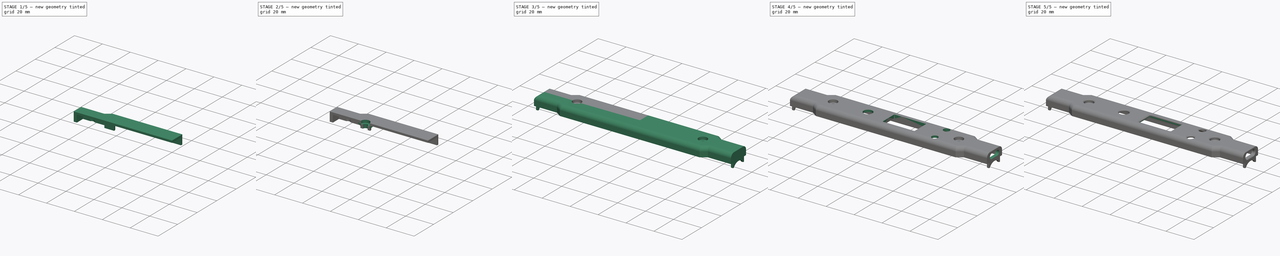
[diagram: build sequence overview — one tinted view per stage of 5, left to right]
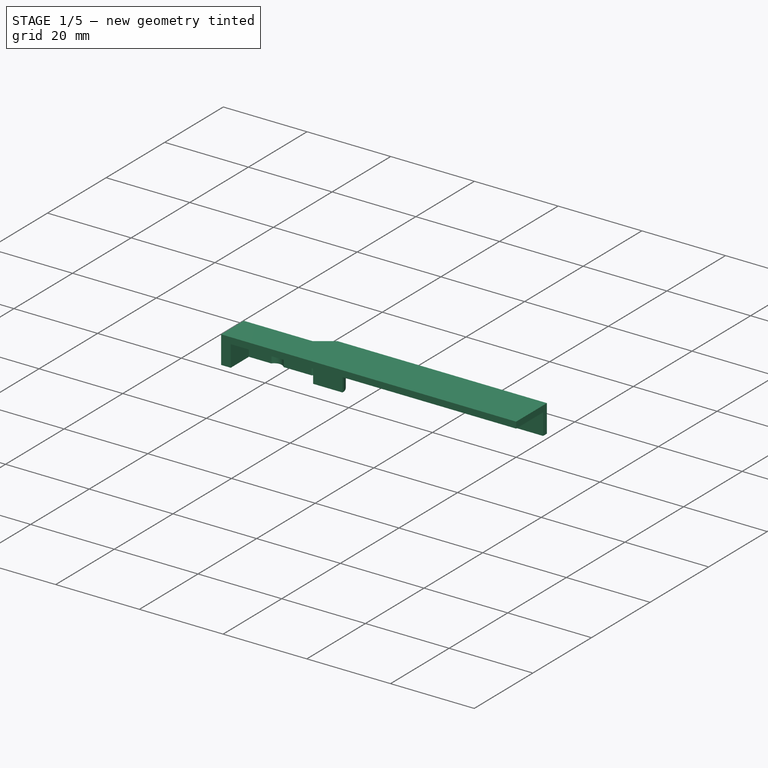
[diagram: stage 1 of 5 — iso view after this stage's code; geometry added in this stage tinted green]
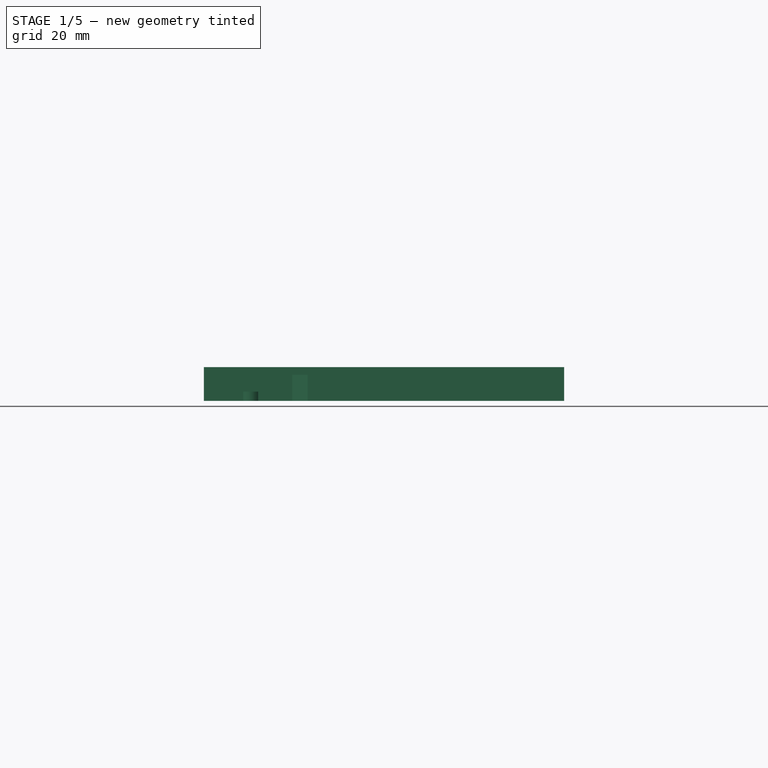
[diagram: stage 1 of 5 — front view after this stage's code; geometry added in this stage tinted green]
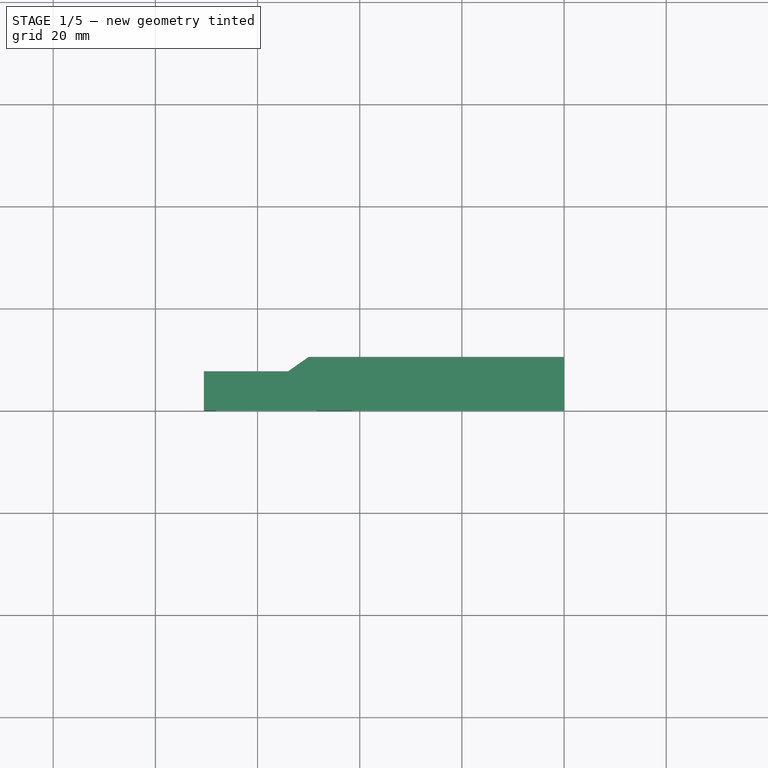
[diagram: stage 1 of 5 — top view after this stage's code; geometry added in this stage tinted green]
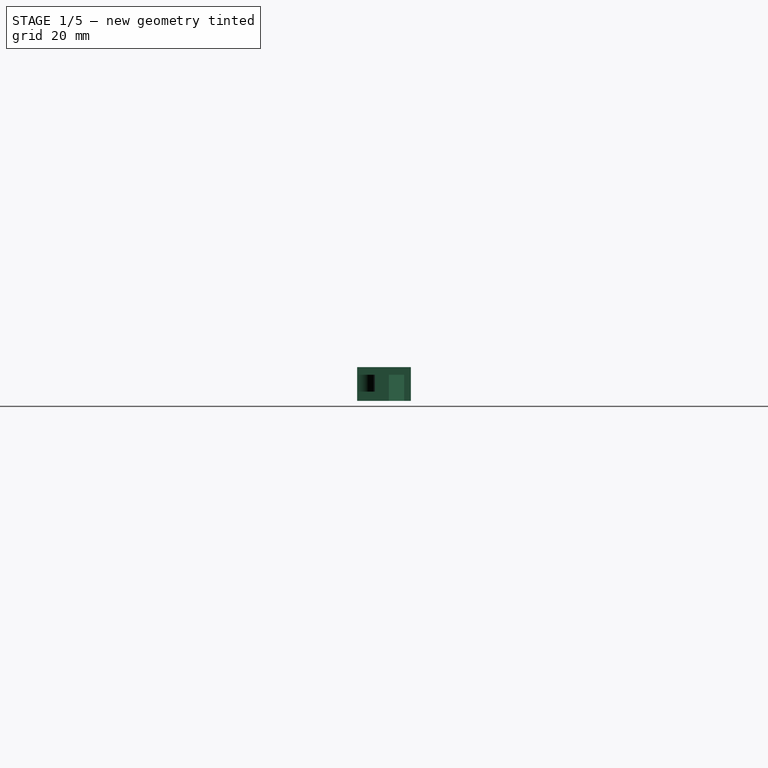
[diagram: stage 1 of 5 — right view after this stage's code; geometry added in this stage tinted green]
FCSTD DOCUMENT  (FreeCAD 0.19R24291 (Git))
Label: top-case
License: All rights reserved
LicenseURL: http://en.wikipedia.org/wiki/All_rights_reserved
objects: Sketcher::SketchObject×10, PartDesign::Pocket×7, PartDesign::Plane×4, PartDesign::Pad×3, PartDesign::Line×2, PartDesign::Chamfer×2, PartDesign::Mirrored×2, PartDesign::Fillet×2, PartDesign::MultiTransform×1, PartDesign::Body×1
note: 48 computed .brp shape members not serialized (recipe doc carries the construction recipe); baked Part::Feature solids carry a one-line shape summary decoded from their .brp

FEATURE [PartDesign::Plane] DatumPlane  label="BoardTop"
  AttachmentOffset = pos=(0,0,1.6) rot=(0,0,1;0rad)
  Length = 60
  MapMode = 5
  Placement = pos=(0,0,1.6) rot=(0,0,1;0rad)
  ResizeMode = 0
  Support = -> [XY_Plane]
  Width = 60
FEATURE [PartDesign::Plane] DatumPlane001  label="CaseTop"
  AttachmentOffset = pos=(0,0,5) rot=(0,0,1;0rad)
  Length = 60
  MapMode = 5
  Placement = pos=(0,0,6.6) rot=(0,0,1;0rad)
  ResizeMode = 0
  Support = -> [DatumPlane]
  Width = 60
FEATURE [Sketcher::SketchObject] Sketch
  FullyConstrained = true
  MapMode = 5
  Placement = pos=(0,0,6.6) rot=(0,0,1;0rad)
  Support = -> [DatumPlane001]
  sketch-geometry (7):
    g0: LineSegment StartX=0 StartY=0 StartZ=0 EndX=-70.5 EndY=0 EndZ=0
    g1: LineSegment StartX=-70.5 StartY=0 StartZ=0 EndX=-70.5 EndY=7.7 EndZ=0
    g2: LineSegment StartX=-70.5 StartY=7.7 StartZ=0 EndX=-54 EndY=7.7 EndZ=0
    g3: LineSegment StartX=-54 StartY=7.7 StartZ=0 EndX=-50 EndY=10.5 EndZ=0
    g4: LineSegment StartX=-50 StartY=10.5 StartZ=0 EndX=0 EndY=10.5 EndZ=0
    g5: LineSegment StartX=0 StartY=10.5 StartZ=0 EndX=0 EndY=0 EndZ=0
    g6: GeomPoint X=-69 Y=7.7 Z=0
  constraints (19):
    c: Coincident(g-1,g0)
    c: Coincident(g0,g1)
    c: Vertical(g1)
    c: Coincident(g1,g2)
    c: Horizontal(g2)
    c: Coincident(g2,g3)
    c: Coincident(g3,g4)
    c: Horizontal(g4)
    c: Coincident(g4,g5)
    c: Coincident(g5,g0)
    c: Horizontal(g0)
    c: Vertical(g5)
    c: DistanceX(g4,g4) = 50
    c: PointOnObject(g6,g2)
    c: DistanceX(g6,g4) = 69
    c: DistanceX(g1,g6) = 1.5
    c: DistanceX(g2,g3) = 4
    c: DistanceY(g1,g1) = 7.7
    c: DistanceY(g5,g5) = 10.5
FEATURE [PartDesign::Pad] Pad  label="CaseOutlinePad"
  Direction = (1,1,1)
  Length = 10
  Length2 = 100
  Placement = pos=(0,0,6.6) rot=(0,0,1;0rad)
  Profile = -> Sketch
  Type = 3
  UpToFace = -> XY_Plane
FEATURE [PartDesign::Line] DatumLine  label="MountingHoleAxis"
  AttacherType = Attacher::AttachEngineLine
  AttachmentOffset = pos=(-45,0,0) rot=(0,0,1;0rad)
  Length = 20
  MapMode = 18
  Placement = pos=(-45,0,6.6) rot=(0,0,1;0rad)
  ResizeMode = 0
  Support = -> [Pad]
FEATURE [Sketcher::SketchObject] Sketch002
  ExternalGeometry = -> [DatumLine]
  FullyConstrained = true
  MapMode = 5
  Support = -> [XY_Plane]
  sketch-geometry (8):
    g0: LineSegment StartX=0 StartY=0 StartZ=0 EndX=0 EndY=9.2 EndZ=0
    g1: LineSegment StartX=0 StartY=9.2 StartZ=0 EndX=-50.2 EndY=9.2 EndZ=0
    g2: LineSegment StartX=-50.2 StartY=9.2 StartZ=0 EndX=-53.2 EndY=6.2 EndZ=0
    g3: LineSegment StartX=-53.2 StartY=6.2 StartZ=0 EndX=-68.2 EndY=6.2 EndZ=0
    g4: LineSegment StartX=-68.2 StartY=6.2 StartZ=0 EndX=-68.2 EndY=0 EndZ=0
    g5: LineSegment StartX=-68.2 StartY=4e-16 StartZ=0 EndX=-48.5 EndY=4e-16 EndZ=0
    g6: LineSegment StartX=-41.5 StartY=0 StartZ=0 EndX=0 EndY=0 EndZ=0
    g7: ArcOfCircle CenterX=-45 CenterY=0 CenterZ=0 NormalX=0 NormalY=0 NormalZ=1 AngleXU=0 Radius=3.5 StartAngle=0 EndAngle=3.14159
  constraints (24):
    c: Coincident(g-1,g0)
    c: Coincident(g0,g1)
    c: Horizontal(g1)
    c: Coincident(g1,g2)
    c: Coincident(g2,g3)
    c: Horizontal(g3)
    c: PointOnObject(g4,g-1)
    c: Coincident(g4,g5)
    c: Coincident(g6,g0)
    c: Coincident(g7,g5)
    c: Coincident(g7,g6)
    c: Coincident(g7,g-3)
    c: Horizontal(g5)
    c: Horizontal(g6)
    c: Vertical(g4)
    c: Vertical(g0)
    c: Angle(g2,g1) = 2.35619
    c: DistanceX(g1,g1) = 50.2
    c: DistanceX(g2,g2) = 3
    c: DistanceX(g4,g2) = 15
    c: DistanceY(g4,g4) = 6.2
    c: Radius(g7) = 3.5
    c: Coincident(g3,g4)
    c: DistanceY(g0,g0) = 9.2
FEATURE [PartDesign::Pocket] Pocket  label="InnerPocket"
  BaseFeature = -> Pad
  Length = 0
  Length2 = 100
  Offset = 1.5
  Placement = pos=(0,0,6.6) rot=(0,0,1;0rad)
  Profile = -> Sketch002
  Type = 3
  UpToFace = -> DatumPlane001 [Plane]
FEATURE [Sketcher::SketchObject] Sketch003
  ExternalGeometry = -> [DatumLine]
  FullyConstrained = true
  MapMode = 5
  Support = -> [XY_Plane]
  sketch-geometry (3):
    g0: Circle CenterX=-45 CenterY=0 CenterZ=0 NormalX=0 NormalY=0 NormalZ=1 AngleXU=0 Radius=4
    g1: Circle CenterX=-61.36 CenterY=5.08 CenterZ=0 NormalX=0 NormalY=0 NormalZ=1 AngleXU=0 Radius=1.85
    g2: GeomPoint X=-53 Y=6 Z=0
  constraints (7):
    c: Coincident(g0,g-3)
    c: Radius(g0) = 4
    c: DistanceX(g2,g-1) = 53
    c: DistanceY(g-1,g2) = 6
    c: DistanceX(g1,g2) = 8.36
    c: DistanceY(g1,g2) = 0.92
    c: Radius(g1) = 1.85
FEATURE [PartDesign::Pocket] Pocket001  label="BoardMountingBossPocket"
  BaseFeature = -> Pocket
  Length = 0
  Length2 = 100
  Offset = -0.2
  Placement = pos=(0,0,6.6) rot=(0,0,1;0rad)
  Profile = -> Sketch003
  Type = 3
  UpToFace = -> DatumPlane [Plane]
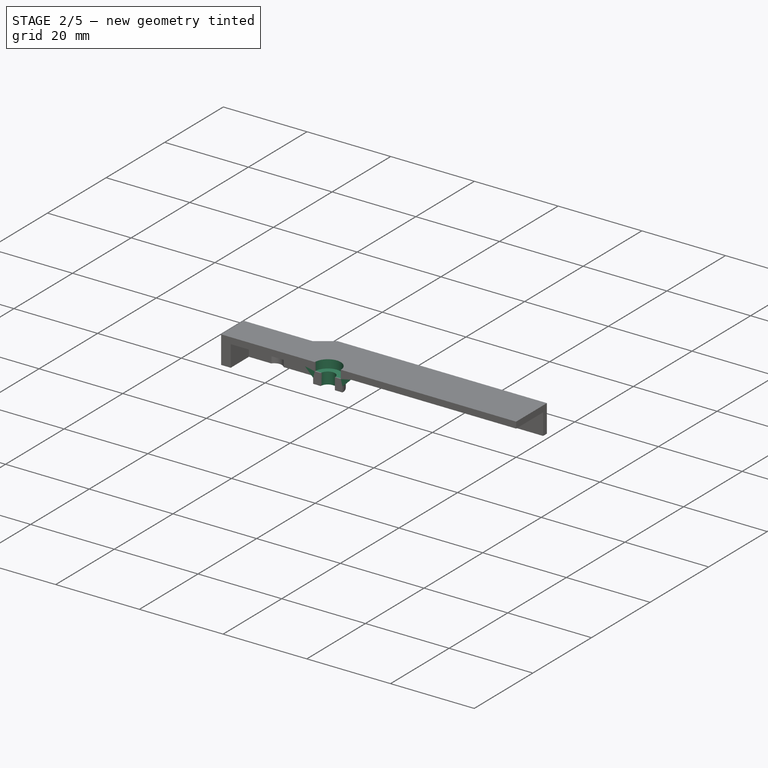
[diagram: stage 2 of 5 — iso view after this stage's code; geometry added in this stage tinted green]
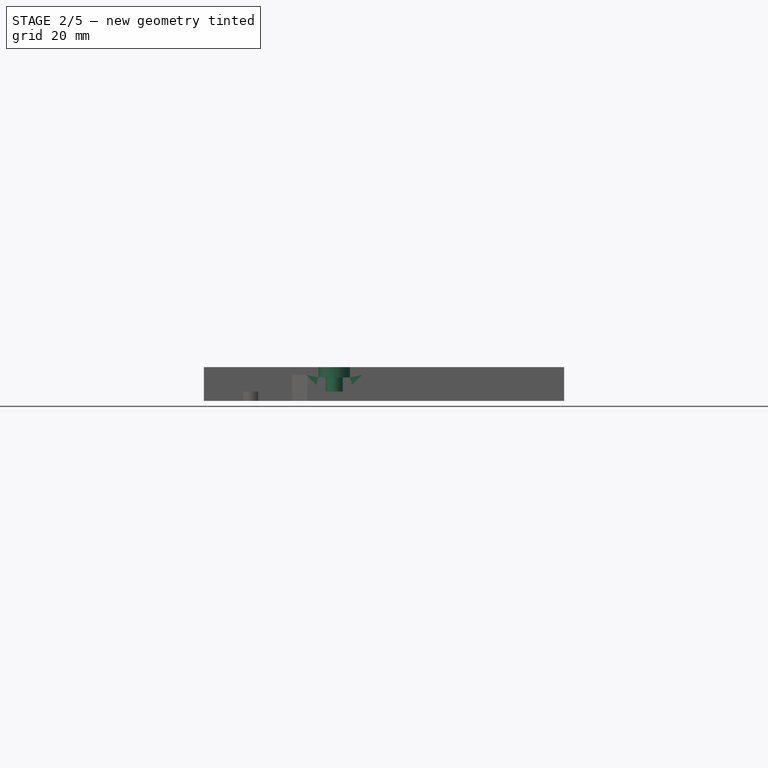
[diagram: stage 2 of 5 — front view after this stage's code; geometry added in this stage tinted green]
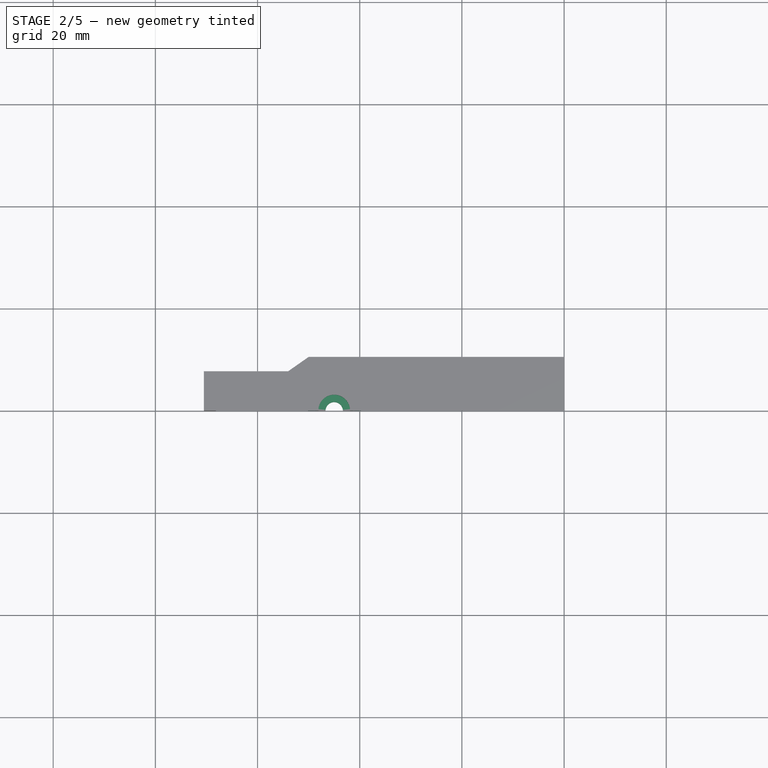
[diagram: stage 2 of 5 — top view after this stage's code; geometry added in this stage tinted green]
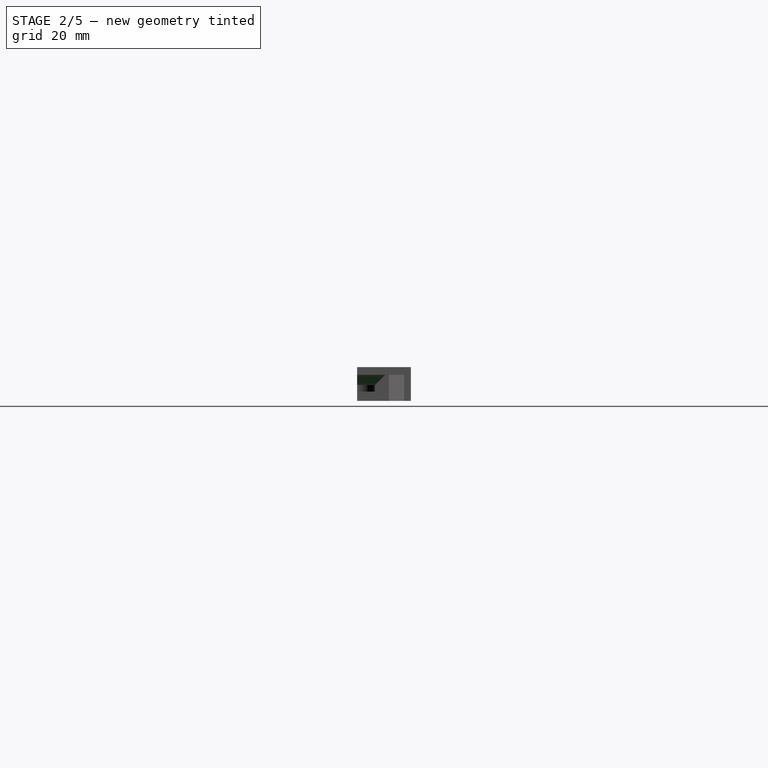
[diagram: stage 2 of 5 — right view after this stage's code; geometry added in this stage tinted green]
FEATURE [Sketcher::SketchObject] Sketch004
  ExternalGeometry = -> [DatumLine]
  FullyConstrained = true
  MapMode = 5
  Placement = pos=(0,0,6.6) rot=(0,0,1;0rad)
  Support = -> [DatumPlane001]
  sketch-geometry (1):
    g0: Circle CenterX=-45 CenterY=0 CenterZ=0 NormalX=0 NormalY=0 NormalZ=1 AngleXU=0 Radius=3.1
  constraints (2):
    c: Coincident(g0,g-3)
    c: Radius(g0) = 3.1
FEATURE [PartDesign::Pocket] Pocket002  label="ScrewHeadPocket"
  BaseFeature = -> Pocket001
  Length = 2
  Length2 = 100
  Placement = pos=(0,0,6.6) rot=(0,0,1;0rad)
  Profile = -> Sketch004
  Type = 0
FEATURE [Sketcher::SketchObject] Sketch005
  ExternalGeometry = -> [DatumLine]
  FullyConstrained = true
  MapMode = 5
  Support = -> [XY_Plane]
  sketch-geometry (1):
    g0: Circle CenterX=-45 CenterY=0 CenterZ=0 NormalX=0 NormalY=0 NormalZ=1 AngleXU=0 Radius=1.7
  constraints (2):
    c: Coincident(g0,g-3)
    c: Radius(g0) = 1.7
FEATURE [PartDesign::Pocket] Pocket003  label="ScrewClearance"
  BaseFeature = -> Pocket002
  Length = 5
  Length2 = 100
  Placement = pos=(0,0,6.6) rot=(0,0,1;0rad)
  Profile = -> Sketch005
  Reversed = true
  Type = 1
FEATURE [PartDesign::Chamfer] Chamfer  label="ScrewChamfer"
  Angle = 45
  Base = -> Pocket003 [Edge25]
  BaseFeature = -> Pocket003
  ChamferType = 0
  FlipDirection = false
  Placement = pos=(0,0,6.6) rot=(0,0,1;0rad)
  Size = 2
  Size2 = 1
  SupportTransform = false
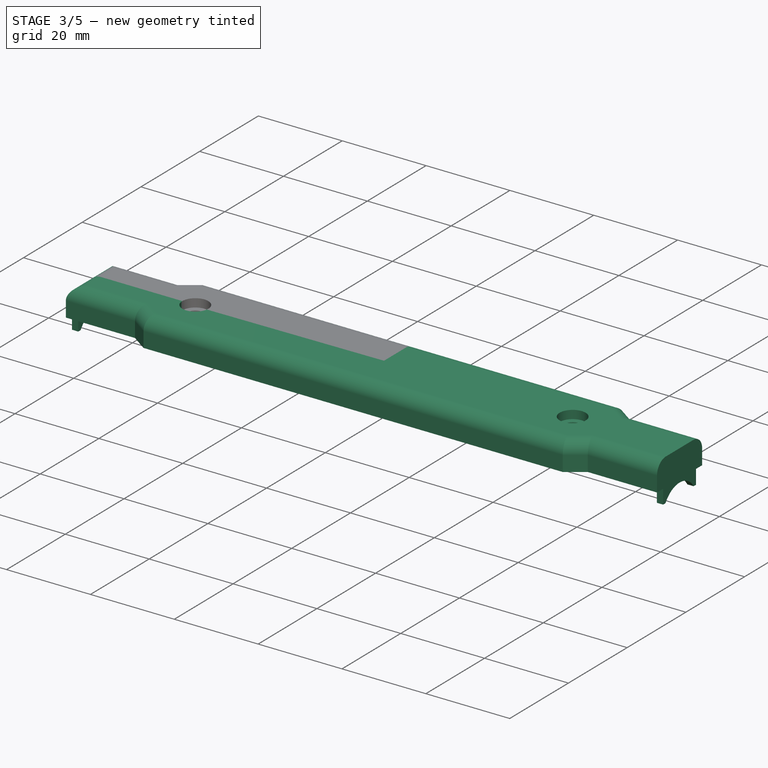
[diagram: stage 3 of 5 — iso view after this stage's code; geometry added in this stage tinted green]
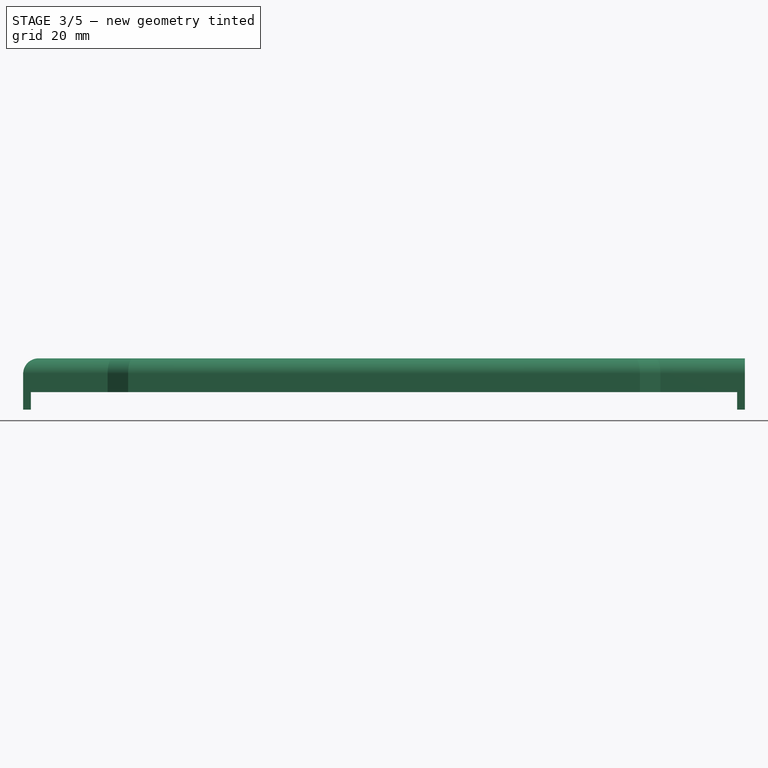
[diagram: stage 3 of 5 — front view after this stage's code; geometry added in this stage tinted green]
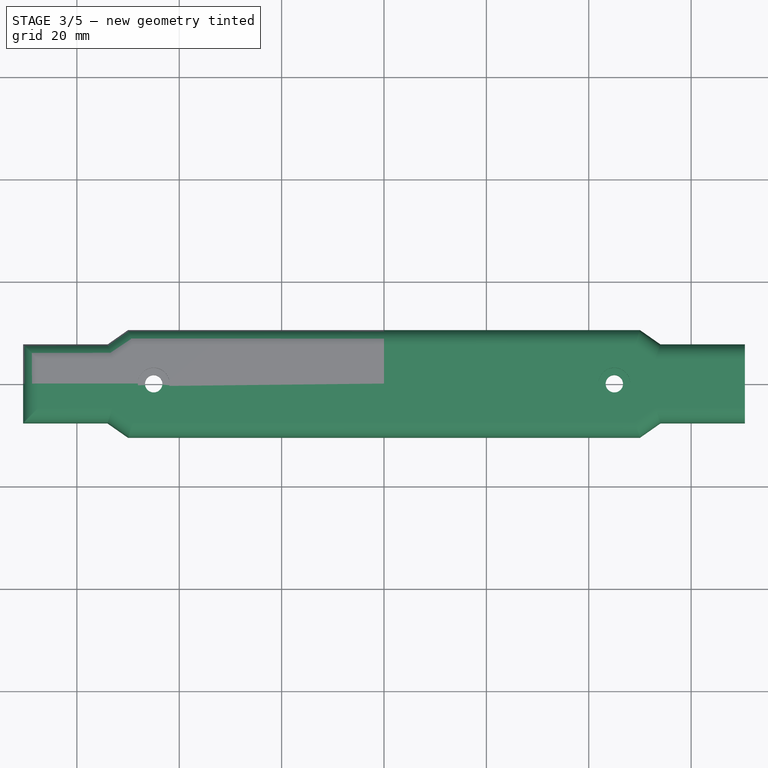
[diagram: stage 3 of 5 — top view after this stage's code; geometry added in this stage tinted green]
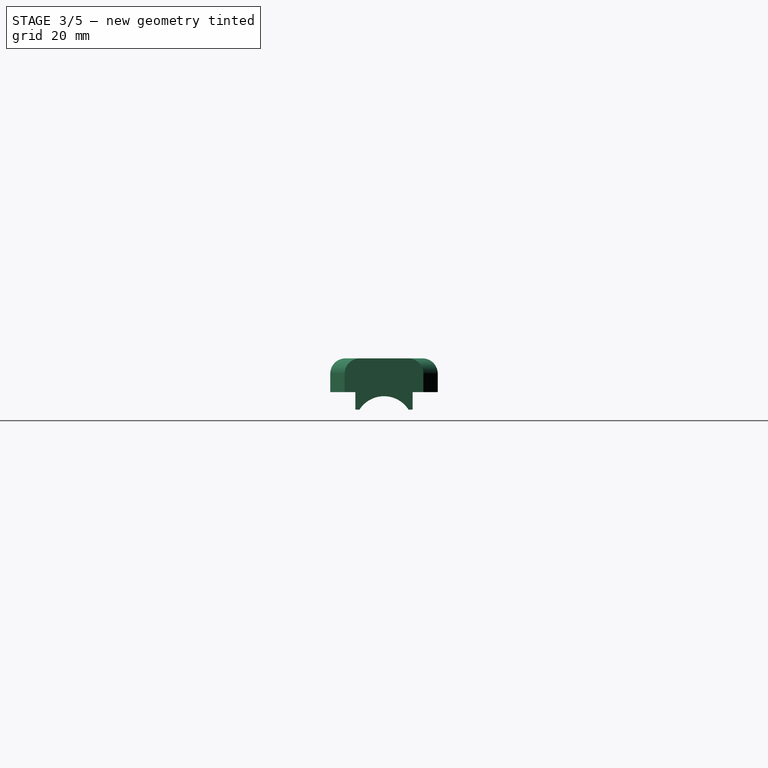
[diagram: stage 3 of 5 — right view after this stage's code; geometry added in this stage tinted green]
FEATURE [PartDesign::Plane] DatumPlane003  label="CaseFront"
  AttachmentOffset = pos=(0,0,-70.5) rot=(0,0,1;0rad)
  Length = 60
  MapMode = 5
  Placement = pos=(-70.5,1.57e-14,-1.57e-14) rot=(0.57735,0.57735,0.57735;2.0944rad)
  ResizeMode = 0
  Support = -> [YZ_Plane]
  Width = 60
FEATURE [Sketcher::SketchObject] Sketch006
  FullyConstrained = true
  MapMode = 5
  Placement = pos=(-70.5,1.57e-14,-1.57e-14) rot=(0.57735,0.57735,0.57735;2.0944rad)
  Support = -> [DatumPlane003]
  sketch-geometry (5):
    g0: ArcOfCircle CenterX=0 CenterY=-6.5 CenterZ=0 NormalX=0 NormalY=0 NormalZ=1 AngleXU=0 Radius=5.7 StartAngle=0.569621 EndAngle=1.5708
    g1: LineSegment StartX=5.6 StartY=0 StartZ=0 EndX=0 EndY=0 EndZ=0
    g2: LineSegment StartX=0 StartY=0 StartZ=0 EndX=3e-16 EndY=-0.8 EndZ=0
    g3: LineSegment StartX=4.8 StartY=-3.42591 StartZ=0 EndX=5.6 EndY=-3.42591 EndZ=0
    g4: LineSegment StartX=5.6 StartY=-3.42591 StartZ=0 EndX=5.6 EndY=0 EndZ=0
  constraints (15):
    c: PointOnObject(g0,g-2)
    c: PointOnObject(g0,g-2)
    c: Coincident(g1,g-1)
    c: Coincident(g2,g1)
    c: Coincident(g0,g2)
    c: Horizontal(g1)
    c: Radius(g0) = 5.7
    c: DistanceY(g0,g1) = 6.5
    c: DistanceX(g1,g1) = 5.6
    c: Coincident(g0,g3)
    c: Coincident(g3,g4)
    c: Coincident(g4,g1)
    c: Horizontal(g3)
    c: Vertical(g4)
    c: DistanceX(g3,g3) = 0.8
FEATURE [PartDesign::Pad] Pad001  label="ProbeHole"
  BaseFeature = -> Chamfer
  Direction = (1,1,1)
  Length = 1.5
  Length2 = 100
  Placement = pos=(0,0,6.6) rot=(0,0,1;0rad)
  Profile = -> Sketch006
  Type = 0
FEATURE [PartDesign::Mirrored] Mirrored
  MirrorPlane = -> Sketch [V_Axis]
  Placement = pos=(0,0,6.6) rot=(0,0,1;0rad)
FEATURE [PartDesign::Mirrored] Mirrored001
  MirrorPlane = -> XZ_Plane
  Placement = pos=(0,0,6.6) rot=(0,0,1;0rad)
FEATURE [PartDesign::MultiTransform] MultiTransform
  BaseFeature = -> Pad001
  Originals = -> [Pad,Pocket,Pocket001,Pocket002,Pocket003,Chamfer,Pad001]
  Placement = pos=(0,0,6.6) rot=(0,0,1;0rad)
  Transformations = -> [Mirrored,Mirrored001]
FEATURE [PartDesign::Plane] DatumPlane004  label="CaseBack"
  AttachmentOffset = pos=(0,0,70.5) rot=(0,0,1;0rad)
  Length = 60
  MapMode = 5
  Placement = pos=(70.5,-1.57e-14,1.57e-14) rot=(0.57735,0.57735,0.57735;2.0944rad)
  ResizeMode = 0
  Support = -> [YZ_Plane]
  Width = 60
FEATURE [Sketcher::SketchObject] Sketch007
  ExternalGeometry = -> [DatumPlane]
  FullyConstrained = true
  MapMode = 5
  Placement = pos=(70.5,-1.57e-14,1.57e-14) rot=(0.57735,0.57735,0.57735;2.0944rad)
  Support = -> [DatumPlane004]
  sketch-geometry (8):
    g0: LineSegment StartX=-2.9 StartY=5.08 StartZ=0 EndX=2.9 EndY=5.08 EndZ=0
    g1: LineSegment StartX=-2.9 StartY=1.48 StartZ=0 EndX=2.9 EndY=1.48 EndZ=0
    g2: LineSegment StartX=-2.9 StartY=3.28 StartZ=0 EndX=2.9 EndY=3.28 EndZ=0
    g3: ArcOfCircle CenterX=-2.9 CenterY=3.28 CenterZ=0 NormalX=0 NormalY=0 NormalZ=1 AngleXU=0 Radius=1.8 StartAngle=1.5708 EndAngle=4.71239
    g4: ArcOfCircle CenterX=2.9 CenterY=3.28 CenterZ=0 NormalX=0 NormalY=0 NormalZ=1 AngleXU=0 Radius=1.8 StartAngle=4.71239 EndAngle=7.85398
    g5: GeomPoint X=0 Y=1.6 Z=0
    g6: GeomPoint X=-4.7 Y=3.28 Z=0
    g7: GeomPoint X=4.7 Y=3.28 Z=0
  constraints (18):
    c: Horizontal(g0)
    c: Horizontal(g1)
    c: Coincident(g3,g1)
    c: Tangent(g4,g1) = -1.5708
    c: Tangent(g4,g0) = 1.5708
    c: Tangent(g3,g0) = 1.5708
    c: Coincident(g2,g3)
    c: Coincident(g2,g4)
    c: Symmetric(g4,g3,g-2)
    c: PointOnObject(g5,g-2)
    c: PointOnObject(g5,g-3)
    c: DistanceY(g5,g4) = 1.68
    c: PointOnObject(g6,g3)
    c: PointOnObject(g7,g4)
    c: PointOnObject(g7,g2)
    c: PointOnObject(g6,g2)
    c: DistanceX(g6,g7) = 9.4
    c: DistanceY(g1,g0) = 3.6
FEATURE [PartDesign::Line] DatumLine001  label="LcdActiveCenterAxis"
  AttacherType = Attacher::AttachEngineLine
  AttachmentOffset = pos=(6,0,0) rot=(0,0,1;0rad)
  Length = 20
  MapMode = 16
  Placement = pos=(6,-2e-15,2e-15) rot=(0,0,1;0rad)
  ResizeMode = 0
  Support = -> [Z_Axis]
FEATURE [Sketcher::SketchObject] Sketch008
  ExternalGeometry = -> [DatumLine001]
  FullyConstrained = true
  MapMode = 5
  Support = -> [XY_Plane]
  sketch-geometry (19):
    g0: Circle CenterX=-20 CenterY=0 CenterZ=0 NormalX=0 NormalY=0 NormalZ=1 AngleXU=0 Radius=3.2
    g1: Circle CenterX=32 CenterY=6 CenterZ=0 NormalX=0 NormalY=0 NormalZ=1 AngleXU=0 Radius=2.2
    g2: Circle CenterX=32 CenterY=-6 CenterZ=0 NormalX=0 NormalY=0 NormalZ=1 AngleXU=0 Radius=2.2
    g3: LineSegment StartX=32 StartY=-6 StartZ=0 EndX=32 EndY=6 EndZ=0
    g4: GeomPoint X=6 Y=-2e-15 Z=0
    g5: GeomPoint X=32 Y=0 Z=0
    g6: GeomPoint X=6 Y=0 Z=0
    g7: GeomPoint X=-5.45 Y=6 Z=0
    g8: GeomPoint X=17.45 Y=6 Z=0
    g9: GeomPoint X=-5.45 Y=-6 Z=0
    g10: GeomPoint X=17.45 Y=-6 Z=0
    g11: LineSegment StartX=-4.95 StartY=6 StartZ=0 EndX=16.95 EndY=6 EndZ=0
    g12: LineSegment StartX=17.45 StartY=5.5 StartZ=0 EndX=17.45 EndY=-5.5 EndZ=0
    g13: LineSegment StartX=-5.45 StartY=5.5 StartZ=0 EndX=-5.45 EndY=-5.5 EndZ=0
    g14: LineSegment StartX=-4.95 StartY=-6 StartZ=0 EndX=16.95 EndY=-6 EndZ=0
    g15: ArcOfCircle CenterX=-4.95 CenterY=-5.5 CenterZ=0 NormalX=0 NormalY=0 NormalZ=1 AngleXU=0 Radius=0.5 StartAngle=3.14159 EndAngle=4.71239
    g16: ArcOfCircle CenterX=16.95 CenterY=-5.5 CenterZ=0 NormalX=0 NormalY=0 NormalZ=1 AngleXU=0 Radius=0.5 StartAngle=4.71239 EndAngle=6.28319
    g17: ArcOfCircle CenterX=16.95 CenterY=5.5 CenterZ=0 NormalX=0 NormalY=0 NormalZ=1 AngleXU=0 Radius=0.5 StartAngle=0 EndAngle=1.5708
    g18: ArcOfCircle CenterX=-4.95 CenterY=5.5 CenterZ=0 NormalX=0 NormalY=0 NormalZ=1 AngleXU=0 Radius=0.5 StartAngle=1.5708 EndAngle=3.14159
  constraints (42):
    c: PointOnObject(g0,g-1)
    c: Coincident(g3,g2)
    c: Coincident(g3,g1)
    c: Equal(g1,g2)
    c: Radius(g2) = 2.2
    c: DistanceY(g3,g3) = 12
    c: Symmetric(g2,g1,g-1)
    c: DistanceX(g0,g-1) = 20
    c: DistanceX(g-1,g1) = 32
    c: PointOnObject(g5,g3)
    c: PointOnObject(g5,g-1)
    c: Radius(g0) = 3.2
    c: DistanceX(g-3,g6) = 9e-16
    c: Coincident(g4,g-3)
    c: Symmetric(g0,g5,g6)
    c: Symmetric(g8,g9,g4)
    c: Horizontal(g11)
    c: Vertical(g13)
    c: Horizontal(g14)
    c: PointOnObject(g10,g14)
    c: PointOnObject(g10,g12)
    c: PointOnObject(g8,g12)
    c: PointOnObject(g8,g11)
    c: PointOnObject(g7,g11)
    c: PointOnObject(g7,g13)
    c: PointOnObject(g9,g13)
    c: DistanceY(g9,g7) = 12
    c: DistanceX(g9,g10) = 22.9
    c: Vertical(g12)
    c: PointOnObject(g9,g14)
    c: Equal(g18,g17)
    c: Equal(g17,g16)
    c: Equal(g16,g15)
    c: Tangent(g15,g14) = -1.5708
    c: Tangent(g15,g13) = -1.5708
    c: Tangent(g13,g18) = -1.5708
    c: Tangent(g18,g11) = 1.5708
    c: Tangent(g17,g11) = 1.5708
    c: Tangent(g17,g12) = 1.5708
    c: Tangent(g16,g12) = 1.5708
    c: Tangent(g16,g14) = -1.5708
    c: Radius(g18) = 0.5
FEATURE [Sketcher::SketchObject] Sketch009
  AttachmentOffset = pos=(0,0,-2.5) rot=(0,0,1;0rad)
  ExternalGeometry = -> [DatumLine001]
  FullyConstrained = true
  MapMode = 5
  Placement = pos=(0,0,4.1) rot=(0,0,1;0rad)
  Support = -> [DatumPlane001]
  sketch-geometry (14):
    g0: LineSegment StartX=-4.85 StartY=5.4 StartZ=0 EndX=16.85 EndY=5.4 EndZ=0
    g1: LineSegment StartX=16.85 StartY=5.4 StartZ=0 EndX=16.85 EndY=-5.4 EndZ=0
    g2: LineSegment StartX=16.85 StartY=-5.4 StartZ=0 EndX=-4.85 EndY=-5.4 EndZ=0
    g3: LineSegment StartX=-4.85 StartY=-5.4 StartZ=0 EndX=-4.85 EndY=5.4 EndZ=0
    g4: LineSegment StartX=-6.55 StartY=6.75 StartZ=0 EndX=21.4 EndY=6.75 EndZ=0
    g5: LineSegment StartX=21.4 StartY=6.75 StartZ=0 EndX=21.4 EndY=-6.75 EndZ=0
    g6: LineSegment StartX=21.4 StartY=-6.75 StartZ=0 EndX=-6.55 EndY=-6.75 EndZ=0
    g7: LineSegment StartX=-6.55 StartY=-6.75 StartZ=0 EndX=-6.55 EndY=6.75 EndZ=0
    g8: LineSegment StartX=-8.05 StartY=9.75 StartZ=0 EndX=22.9 EndY=9.75 EndZ=0
    g9: LineSegment StartX=22.9 StartY=9.75 StartZ=0 EndX=22.9 EndY=-9.75 EndZ=0
    g10: LineSegment StartX=22.9 StartY=-9.75 StartZ=0 EndX=-8.05 EndY=-9.75 EndZ=0
    g11: LineSegment StartX=-8.05 StartY=-9.75 StartZ=0 EndX=-8.05 EndY=9.75 EndZ=0
    g12: GeomPoint X=7.425 Y=6.75 Z=0
    g13: LineSegment StartX=7.425 StartY=6.75 StartZ=0 EndX=7.425 EndY=5.4 EndZ=0
  constraints (36):
    c: Coincident(g0,g1)
    c: Coincident(g1,g2)
    c: Coincident(g2,g3)
    c: Coincident(g3,g0)
    c: Horizontal(g0)
    c: Horizontal(g2)
    c: Vertical(g1)
    c: Vertical(g3)
    c: Symmetric(g2,g0,g-3)
    c: DistanceX(g0,g0) = 21.7
    c: DistanceY(g1,g1) = 10.8
    c: Coincident(g4,g5)
    c: Coincident(g5,g6)
    c: Coincident(g6,g7)
    c: Coincident(g7,g4)
    c: Horizontal(g4)
    c: Horizontal(g6)
    c: Vertical(g5)
    c: Symmetric(g4,g6,g-1)
    c: DistanceY(g7,g7) = 13.5
    c: DistanceX(g4,g4) = 27.95
    c: DistanceX(g4,g0) = 1.7
    c: Coincident(g8,g9)
    c: Coincident(g9,g10)
    c: Coincident(g10,g11)
    c: Coincident(g11,g8)
    c: Horizontal(g10)
    c: Vertical(g9)
    c: Symmetric(g8,g10,g-1)
    c: Symmetric(g4,g4,g12)
    c: Coincident(g13,g12)
    c: PointOnObject(g13,g0)
    c: Vertical(g13)
    c: Symmetric(g8,g8,g13)
    c: DistanceX(g8,g4) = 1.5
    c: DistanceY(g4,g8) = 3
FEATURE [Sketcher::SketchObject] Sketch010  label="ScreenOutline"
  AttachmentOffset = pos=(0,0,-2.5) rot=(0,0,1;0rad)
  ExternalGeometry = -> [DatumLine001]
  FullyConstrained = true
  MapMode = 5
  Placement = pos=(0,0,4.1) rot=(0,0,1;0rad)
  Support = -> [DatumPlane001]
  sketch-geometry (30):
    g0: LineSegment StartX=-4.85 StartY=5.4 StartZ=0 EndX=16.85 EndY=5.4 EndZ=0
    g1: LineSegment StartX=16.85 StartY=5.4 StartZ=0 EndX=16.85 EndY=-5.4 EndZ=0
    g2: LineSegment StartX=16.85 StartY=-5.4 StartZ=0 EndX=-4.85 EndY=-5.4 EndZ=0
    g3: LineSegment StartX=-4.85 StartY=-5.4 StartZ=0 EndX=-4.85 EndY=5.4 EndZ=0
    g4: LineSegment StartX=-6.55 StartY=6.75 StartZ=0 EndX=21.4 EndY=6.75 EndZ=0
    g5: LineSegment StartX=21.4 StartY=6.75 StartZ=0 EndX=21.4 EndY=-6.75 EndZ=0
    g6: LineSegment StartX=21.4 StartY=-6.75 StartZ=0 EndX=-6.55 EndY=-6.75 EndZ=0
    g7: LineSegment StartX=-6.55 StartY=-6.75 StartZ=0 EndX=-6.55 EndY=6.75 EndZ=0
    g8: LineSegment StartX=-6.15 StartY=7.15 StartZ=0 EndX=21 EndY=7.15 EndZ=0
    g9: LineSegment StartX=21 StartY=-7.15 StartZ=0 EndX=-6.15 EndY=-7.15 EndZ=0
    g10: LineSegment StartX=-6.95 StartY=-6.35 StartZ=0 EndX=-6.95 EndY=6.35 EndZ=0
    g11: GeomPoint X=7.425 Y=6.75 Z=0
    g12: LineSegment StartX=7.425 StartY=6.75 StartZ=0 EndX=7.425 EndY=5.4 EndZ=0
    g13: LineSegment StartX=21.8 StartY=6.35 StartZ=0 EndX=21.8 EndY=4.35 EndZ=0
    g14: LineSegment StartX=21.8 StartY=4.35 StartZ=0 EndX=26.4 EndY=4.35 EndZ=0
    g15: LineSegment StartX=26.4 StartY=4.35 StartZ=0 EndX=26.4 EndY=-4.35 EndZ=0
    g16: LineSegment StartX=26.4 StartY=-4.35 StartZ=0 EndX=21.8 EndY=-4.35 EndZ=0
    g17: LineSegment StartX=21.8 StartY=-4.35 StartZ=0 EndX=21.8 EndY=-6.35 EndZ=0
    g18: LineSegment StartX=-6.15 StartY=7.15 StartZ=0 EndX=-6.15 EndY=7.65 EndZ=0
    g19: LineSegment StartX=-6.95 StartY=6.35 StartZ=0 EndX=-7.45 EndY=6.35 EndZ=0
    g20: LineSegment StartX=-6.95 StartY=-6.35 StartZ=0 EndX=-7.45 EndY=-6.35 EndZ=0
    g21: LineSegment StartX=-6.15 StartY=-7.15 StartZ=0 EndX=-6.15 EndY=-7.65 EndZ=0
    g22: LineSegment StartX=21 StartY=-7.15 StartZ=0 EndX=21 EndY=-7.65 EndZ=0
    g23: LineSegment StartX=21.8 StartY=-6.35 StartZ=0 EndX=22.3 EndY=-6.35 EndZ=0
    g24: LineSegment StartX=21.8 StartY=6.35 StartZ=0 EndX=22.3 EndY=6.35 EndZ=0
    g25: LineSegment StartX=21 StartY=7.15 StartZ=0 EndX=21 EndY=7.65 EndZ=0
    g26: ArcOfCircle CenterX=-6.15 CenterY=6.35 CenterZ=0 NormalX=0 NormalY=0 NormalZ=1 AngleXU=0 Radius=1.3 StartAngle=1.5708 EndAngle=3.14159
    g27: ArcOfCircle CenterX=-6.15 CenterY=-6.35 CenterZ=0 NormalX=0 NormalY=0 NormalZ=1 AngleXU=0 Radius=1.3 StartAngle=3.14159 EndAngle=4.71239
    g28: ArcOfCircle CenterX=21 CenterY=-6.35 CenterZ=0 NormalX=0 NormalY=0 NormalZ=1 AngleXU=0 Radius=1.3 StartAngle=4.71239 EndAngle=6.28319
    g29: ArcOfCircle CenterX=21 CenterY=6.35 CenterZ=0 NormalX=0 NormalY=0 NormalZ=1 AngleXU=0 Radius=1.3 StartAngle=6.3e-15 EndAngle=1.5708
  constraints (85):
    c: Coincident(g0,g1)
    c: Coincident(g1,g2)
    c: Coincident(g2,g3)
    c: Coincident(g3,g0)
    c: Horizontal(g0)
    c: Horizontal(g2)
    c: Vertical(g1)
    c: Vertical(g3)
    c: Symmetric(g2,g0,g-3)
    c: DistanceX(g0,g0) = 21.7
    c: DistanceY(g1,g1) = 10.8
    c: Coincident(g4,g5)
    c: Coincident(g5,g6)
    c: Coincident(g6,g7)
    c: Coincident(g7,g4)
    c: Horizontal(g4)
    c: Horizontal(g6)
    c: Vertical(g5)
    c: Symmetric(g4,g6,g-1)
    c: DistanceY(g7,g7) = 13.5
    c: DistanceX(g4,g4) = 27.95
    c: DistanceX(g4,g0) = 1.7
    c: Horizontal(g9)
    c: Symmetric(g4,g4,g11)
    c: Coincident(g12,g11)
    c: PointOnObject(g12,g0)
    c: Vertical(g12)
    c: Vertical(g13)
    c: Coincident(g13,g14)
    c: Horizontal(g14)
    c: Coincident(g14,g15)
    c: Vertical(g15)
    c: Coincident(g15,g16)
    c: Horizontal(g16)
    c: Coincident(g16,g17)
    c: DistanceY(g13,g13) = 2
    c: DistanceX(g4,g14) = 5
    c: Coincident(g18,g8)
    c: Vertical(g18)
    c: Coincident(g19,g10)
    c: Horizontal(g19)
    c: Coincident(g20,g10)
    c: Horizontal(g20)
    c: Coincident(g21,g9)
    c: Vertical(g21)
    c: Coincident(g22,g9)
    c: Coincident(g23,g17)
    c: Horizontal(g23)
    c: Coincident(g24,g13)
    c: Coincident(g25,g8)
    c: Symmetric(g10,g10,g-1)
    c: Symmetric(g8,g8,g12)
    c: DistanceX(g19,g19) = 0.5
    c: Equal(g19,g18)
    c: Coincident(g26,g19)
    c: Coincident(g26,g18)
    c: PointOnObject(g26,g18)
    c: PointOnObject(g26,g19)
    c: DistanceX(g10,g4) = 0.4
    c: Symmetric(g8,g10,g4)
    c: Coincident(g27,g20)
    c: Coincident(g27,g21)
    c: PointOnObject(g27,g21)
    c: PointOnObject(g27,g20)
    c: Vertical(g22)
    c: Coincident(g28,g23)
    c: Coincident(g28,g22)
    c: Coincident(g29,g25)
    c: Coincident(g29,g24)
    c: Vertical(g25)
    c: Horizontal(g24)
    c: Equal(g19,g20)
    c: Equal(g20,g21)
    c: Equal(g21,g22)
    c: Equal(g22,g23)
    c: Equal(g23,g24)
    c: Equal(g24,g25)
    c: Symmetric(g17,g9,g5)
    c: PointOnObject(g29,g24)
    c: PointOnObject(g29,g25)
    c: PointOnObject(g13,g17)
    c: DistanceY(g9,g5) = 0.4
    c: PointOnObject(g28,g22)
    c: Symmetric(g13,g16,g-1)
    c: PointOnObject(g28,g23)
FEATURE [PartDesign::Fillet] Fillet
  Base = -> MultiTransform [Edge34,Edge35,Edge36,Edge20,Edge18,Edge21,Edge19,Edge25,Edge26,Edge27,Edge28,Edge70,Edge68,Edge69,Edge192,Edge194,Edge180,Edge134,Edge149,Edge147,Edge143,Edge168,Edge171,Edge173,Edge153,Edge203,Edge215,Edge213]
  BaseFeature = -> MultiTransform
  Placement = pos=(0,0,6.6) rot=(0,0,1;0rad)
  Radius = 3
  SupportTransform = false
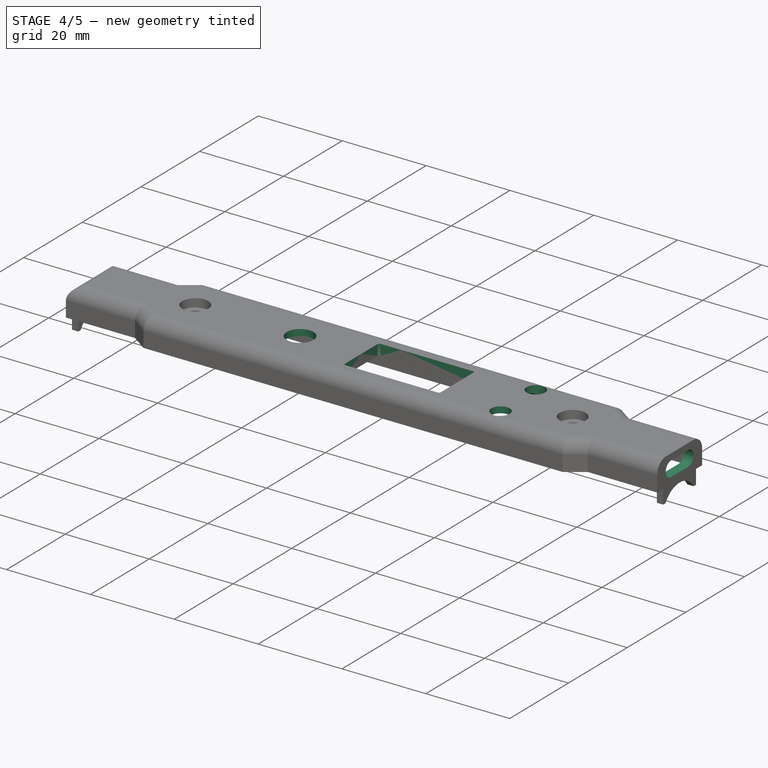
[diagram: stage 4 of 5 — iso view after this stage's code; geometry added in this stage tinted green]
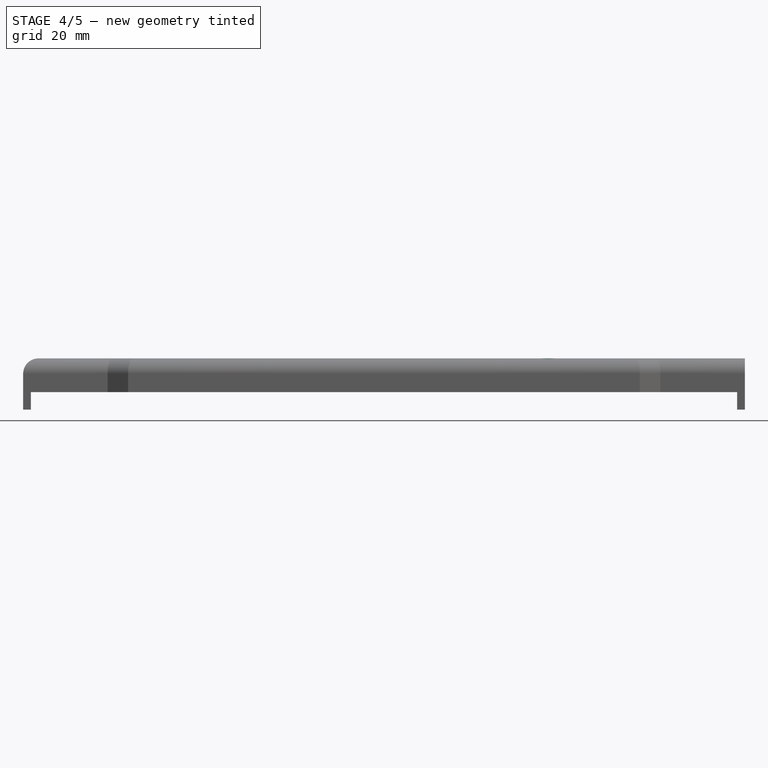
[diagram: stage 4 of 5 — front view after this stage's code; geometry added in this stage tinted green]
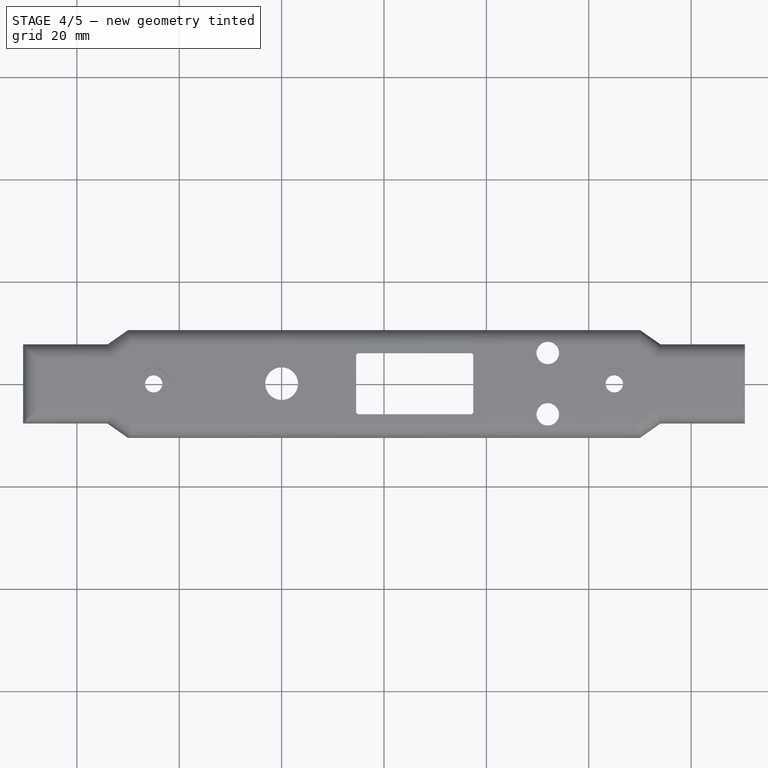
[diagram: stage 4 of 5 — top view after this stage's code; geometry added in this stage tinted green]
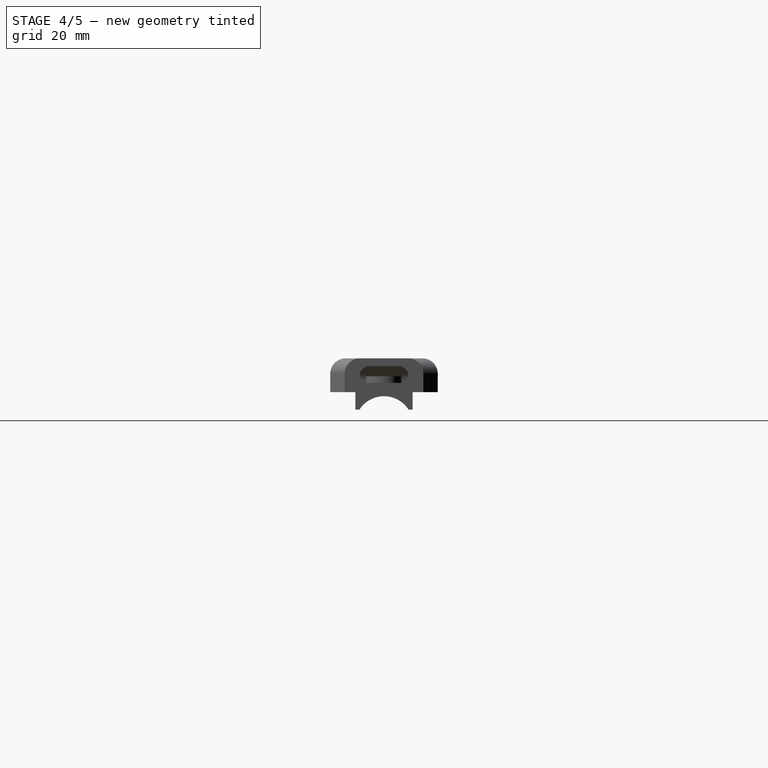
[diagram: stage 4 of 5 — right view after this stage's code; geometry added in this stage tinted green]
FEATURE [PartDesign::Pad] Pad002  label="ScreenBorderPad"
  BaseFeature = -> Fillet
  Direction = (1,1,1)
  Length = 2.5
  Length2 = 100
  Placement = pos=(0,0,6.6) rot=(0,0,1;0rad)
  Profile = -> Sketch009
  Type = 2
FEATURE [PartDesign::Pocket] Pocket004  label="UsbPocket"
  BaseFeature = -> Pad002
  Length = 5
  Length2 = 100
  Placement = pos=(0,0,6.6) rot=(0,0,1;0rad)
  Profile = -> Sketch007
  Type = 0
FEATURE [PartDesign::Pocket] Pocket005  label="ButtonScreenPocket"
  BaseFeature = -> Pocket004
  Length = 5
  Length2 = 100
  Placement = pos=(0,0,6.6) rot=(0,0,1;0rad)
  Profile = -> Sketch008
  Reversed = true
  Type = 1
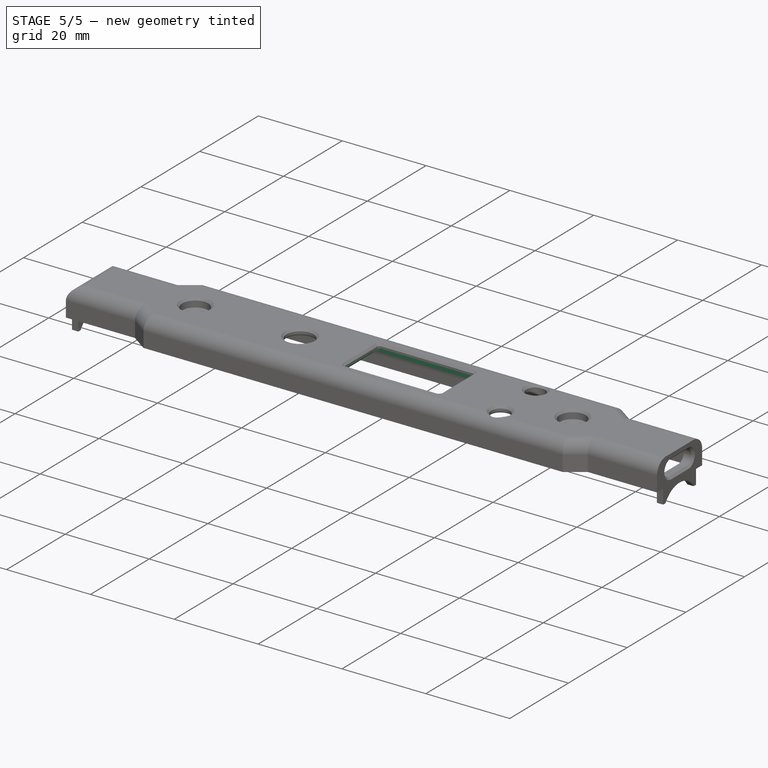
[diagram: stage 5 of 5 — iso view after this stage's code; geometry added in this stage tinted green]
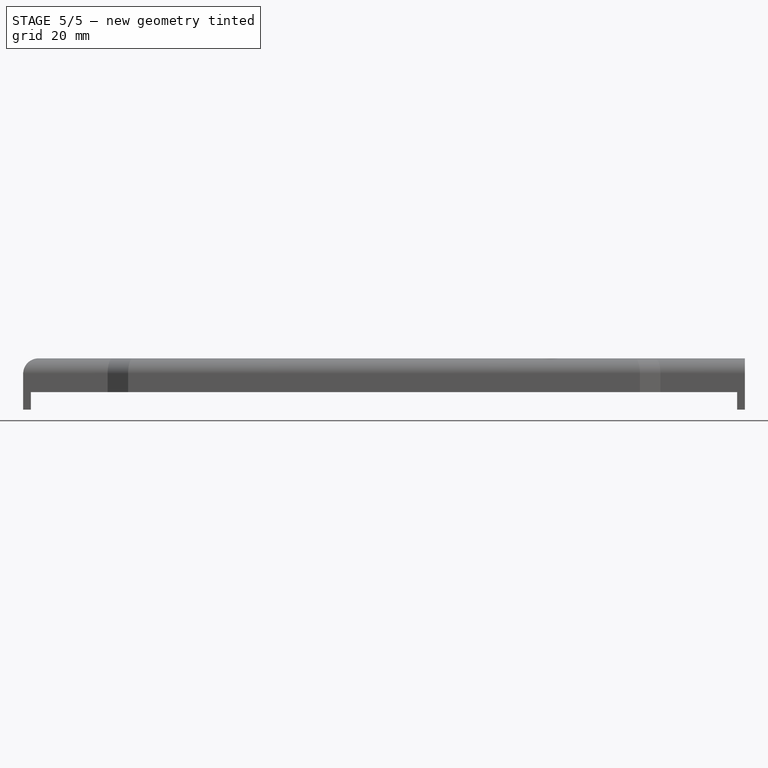
[diagram: stage 5 of 5 — front view after this stage's code; geometry added in this stage tinted green]
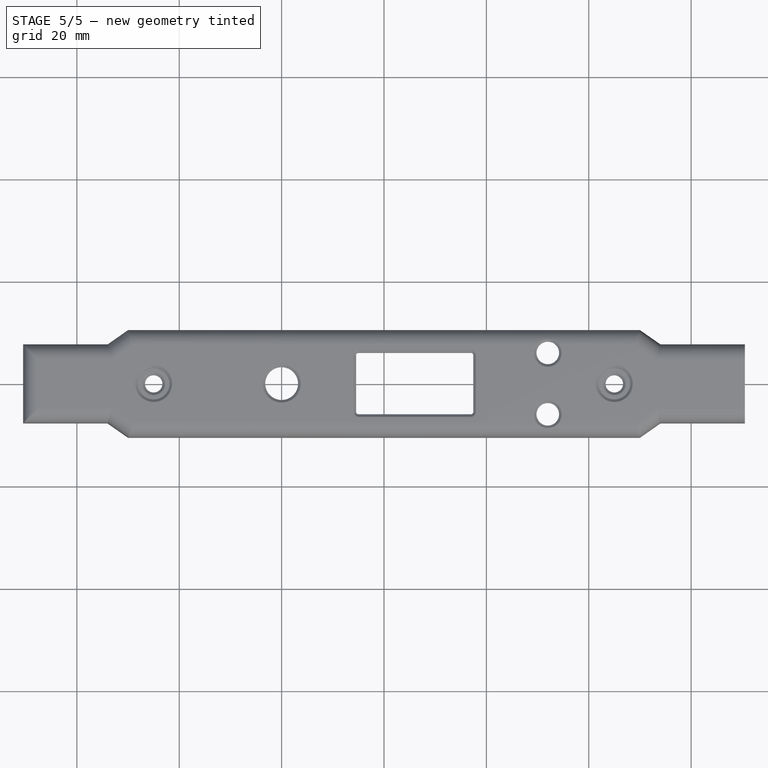
[diagram: stage 5 of 5 — top view after this stage's code; geometry added in this stage tinted green]
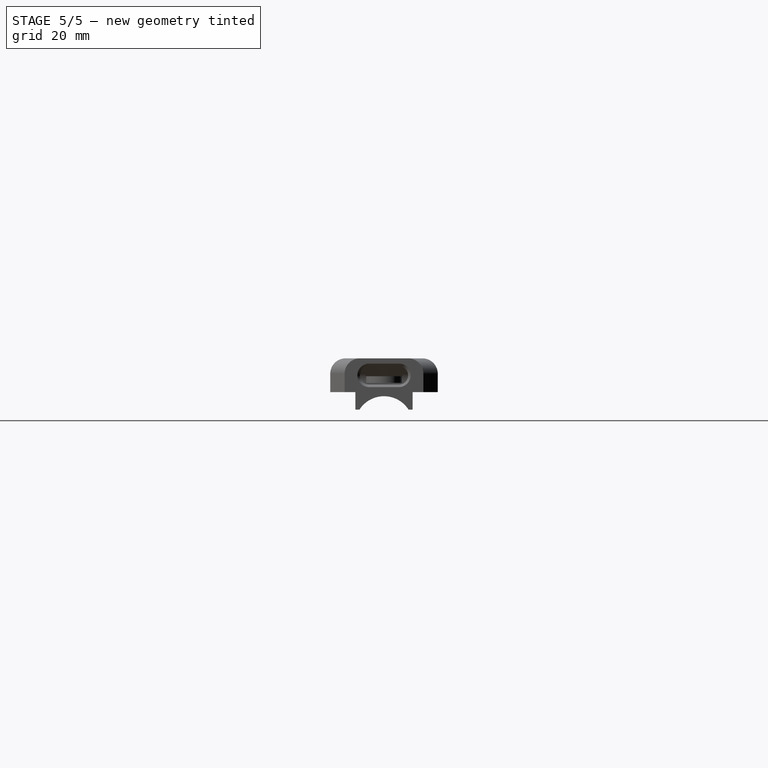
[diagram: stage 5 of 5 — right view after this stage's code; geometry added in this stage tinted green]
FEATURE [PartDesign::Fillet] Fillet001  label="ButtonFilet"
  Base = -> Pocket005 [Edge3,Edge19,Edge102,Edge204,Edge95,Edge190]
  BaseFeature = -> Pocket005
  Placement = pos=(0,0,6.6) rot=(0,0,1;0rad)
  Radius = 0.5
  SupportTransform = false
FEATURE [PartDesign::Chamfer] Chamfer001  label="ScreenChamfer"
  Angle = 45
  Base = -> Fillet001 [Edge134,Edge136,Edge113,Edge112,Edge111,Edge120,Edge121,Edge122,Edge127,Edge129,Edge133,Edge132,Edge307,Edge204,Edge205,Edge223,Edge224,Edge246,Edge50,Edge49,Edge211,Edge229,Edge379,Edge119,Edge108,Edge308,Edge272,Edge320,Edge321,Edge322,Edge336,Edge335,Edge334]
  BaseFeature = -> Fillet001
  ChamferType = 0
  FlipDirection = false
  Placement = pos=(0,0,6.6) rot=(0,0,1;0rad)
  Size = 0.5
  Size2 = 1
  SupportTransform = false
FEATURE [PartDesign::Pocket] Pocket006
  BaseFeature = -> Chamfer001
  Length = 1.5
  Length2 = 100
  Placement = pos=(0,0,6.6) rot=(0,0,1;0rad)
  Profile = -> Sketch010
  Reversed = true
  Type = 0
FEATURE [PartDesign::Body] Body
  Group = -> [DatumPlane,DatumPlane001,DatumPlane003,DatumPlane004,DatumLine,DatumLine001,Sketch,Pad,Sketch002,Pocket,Sketch003,Pocket001,Sketch004,Pocket002,Sketch005,Pocket003,Chamfer,Sketch006,Pad001,MultiTransform,Fillet,Mirrored,Mirrored001,Sketch007,Sketch009,Pad002,Pocket004,Sketch008,Pocket005,Sketch010,Fillet001,Chamfer001,Pocket006]
  Origin = -> Origin
  Tip = -> Pocket006
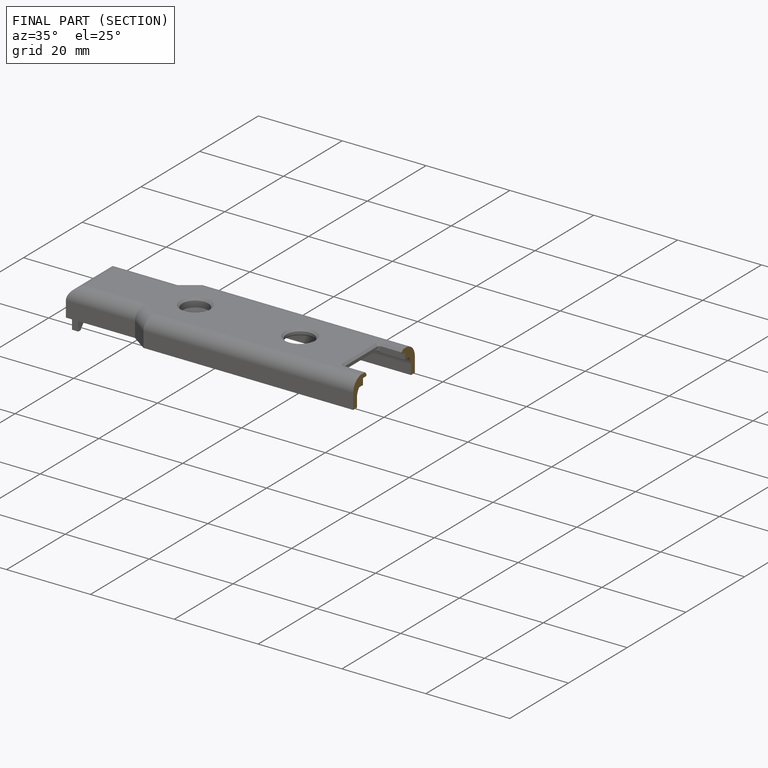
[diagram: finished part — half-section view (interior)]
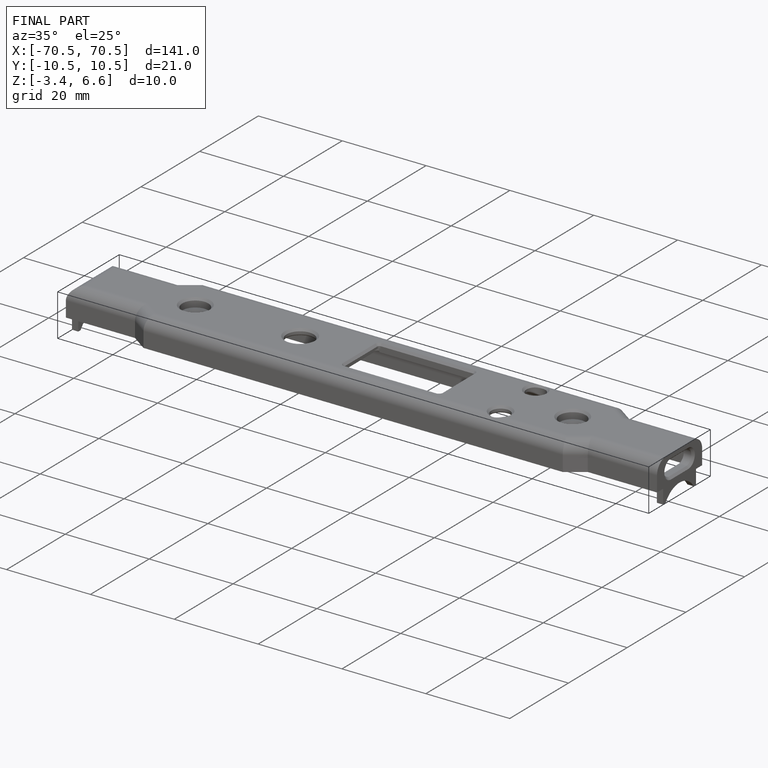
[diagram: finished part — iso view with bounding-box wireframe]
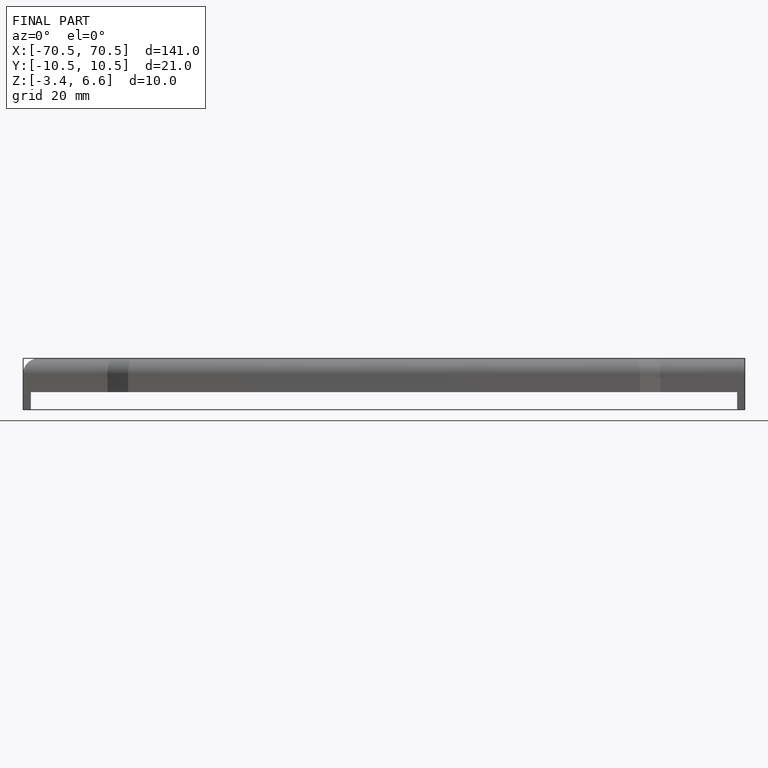
[diagram: finished part — front view with bounding-box wireframe]
